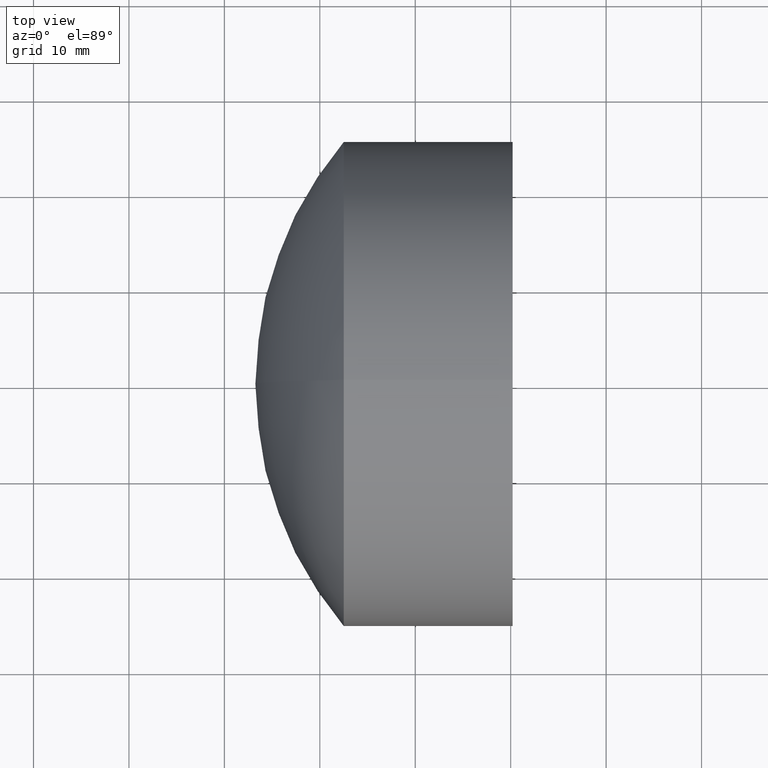
[diagram: clean part render]
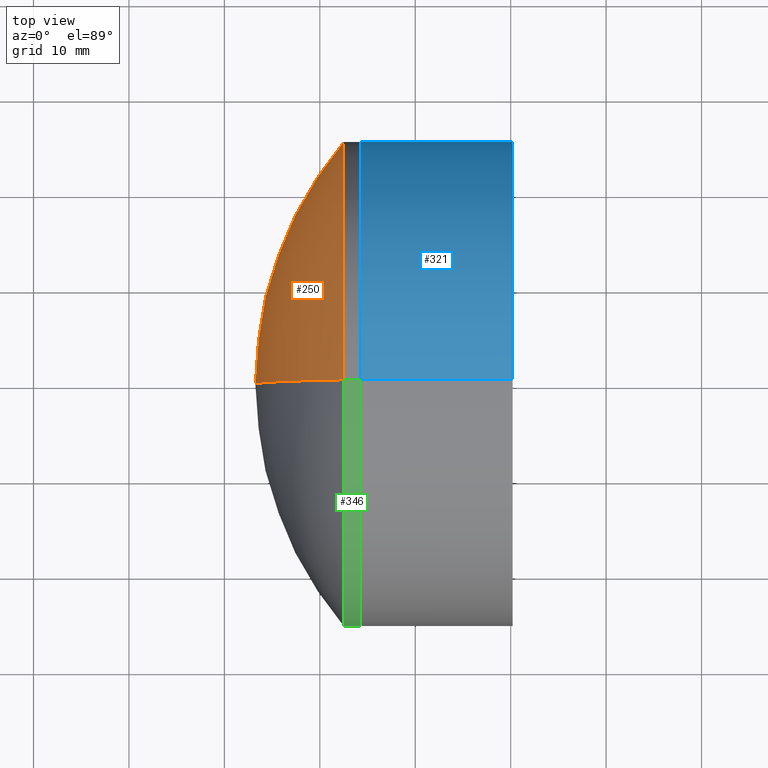
[diagram: same view with three faces highlighted in distinct colors, each labeled with its STEP entity id]
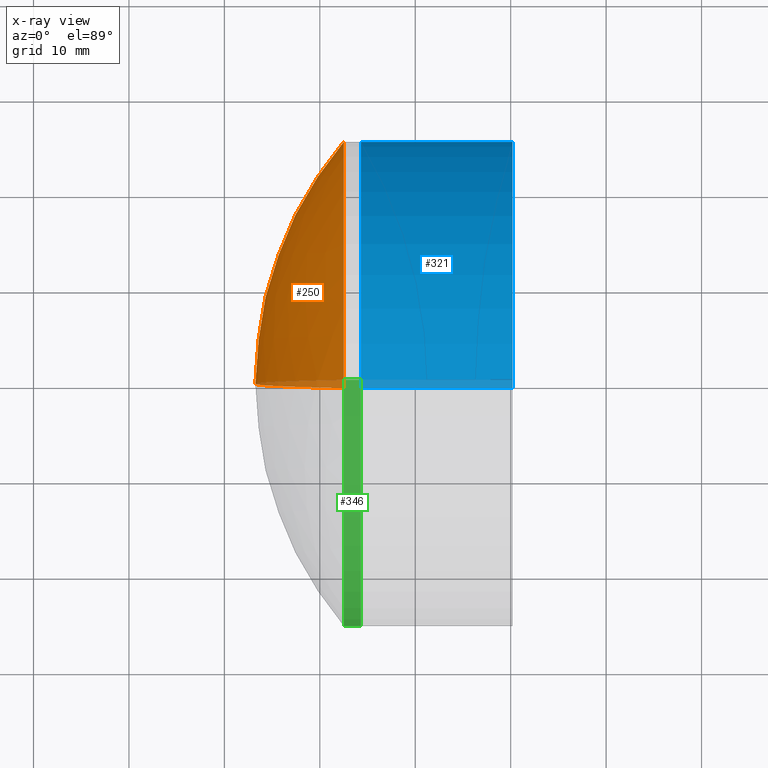
[diagram: x-ray of the same camera — body ghosted, the three highlighted faces saturated]
A machine part, top view with three faces highlighted in distinct colors.
The next image is the same camera in x-ray (body ghosted, the three faces saturated) — at least one of them is partly hidden behind the body in this view.
Their STEP definitions:

[orange] entity #250 — the highlighted spherical surface has radius 39.48 mm.
#2 = DIRECTION ( 'NONE',  ( -0.0000000000000000000, 1.000000000000000000, 1.224646799147353200E-016 ) ) ;
#10 = DIRECTION ( 'NONE',  ( 0.0000000000000000000, 0.0000000000000000000, -1.000000000000000000 ) ) ;
#36 = DIRECTION ( 'NONE',  ( 0.0000000000000000000, 1.000000000000000000, 0.0000000000000000000 ) ) ;
#40 = CARTESIAN_POINT ( 'NONE',  ( 93.24944378259087300, 0.0000000000000000000, -1.964037554729124800E-016 ) ) ;
#48 = DIRECTION ( 'NONE',  ( 0.0000000000000000000, 0.0000000000000000000, 1.000000000000000000 ) ) ;
#49 = ORIENTED_EDGE ( 'NONE', *, *, #213, .F. ) ;
#55 = FACE_OUTER_BOUND ( 'NONE', #80, .T. ) ;
#60 = ORIENTED_EDGE ( 'NONE', *, *, #211, .T. ) ;
#63 = CARTESIAN_POINT ( 'NONE',  ( 132.7294437825908900, 0.0000000000000000000, -2.613856536989788900E-015 ) ) ;
#70 = CARTESIAN_POINT ( 'NONE',  ( 102.5051092158878300, 0.0000000000000000000, 25.40000000000000600 ) ) ;
#80 = EDGE_LOOP ( 'NONE', ( #236, #60, #49 ) ) ;
#95 = CIRCLE ( 'NONE', #284, 39.48000000000001800 ) ;
#98 = AXIS2_PLACEMENT_3D ( 'NONE', #144, #225, #48 ) ;
#113 = AXIS2_PLACEMENT_3D ( 'NONE', #197, #36, #206 ) ;
#117 = CARTESIAN_POINT ( 'NONE',  ( 132.7294437825908900, 0.0000000000000000000, -2.613856536989788900E-015 ) ) ;
#118 = AXIS2_PLACEMENT_3D ( 'NONE', #63, #252, #10 ) ;
#120 = CIRCLE ( 'NONE', #98, 25.40000000000000600 ) ;
#144 = CARTESIAN_POINT ( 'NONE',  ( 102.5051092158878300, 0.0000000000000000000, 0.0000000000000000000 ) ) ;
#162 = SPHERICAL_SURFACE ( 'NONE', #113, 39.48000000000001800 ) ;
#197 = CARTESIAN_POINT ( 'NONE',  ( 132.7294437825908900, 0.0000000000000000000, -2.613856536989788900E-015 ) ) ;
#206 = DIRECTION ( 'NONE',  ( 0.0000000000000000000, 0.0000000000000000000, 1.000000000000000000 ) ) ;
#211 = EDGE_CURVE ( 'NONE', #342, #216, #95, .T. ) ;
#213 = EDGE_CURVE ( 'NONE', #292, #216, #241, .T. ) ;
#216 = VERTEX_POINT ( 'NONE', #40 ) ;
#225 = DIRECTION ( 'NONE',  ( -1.000000000000000000, -0.0000000000000000000, -0.0000000000000000000 ) ) ;
#236 = ORIENTED_EDGE ( 'NONE', *, *, #264, .T. ) ;
#241 = CIRCLE ( 'NONE', #118, 39.48000000000001800 ) ;
#250 = ADVANCED_FACE ( 'NONE', ( #55 ), #162, .T. ) ;
#252 = DIRECTION ( 'NONE',  ( 0.0000000000000000000, -1.000000000000000000, 0.0000000000000000000 ) ) ;
#264 = EDGE_CURVE ( 'NONE', #292, #342, #120, .T. ) ;
#274 = DIRECTION ( 'NONE',  ( 0.0000000000000000000, -1.224646799147353200E-016, 1.000000000000000000 ) ) ;
#284 = AXIS2_PLACEMENT_3D ( 'NONE', #117, #2, #274 ) ;
#287 = CARTESIAN_POINT ( 'NONE',  ( 102.5051092158878300, 3.110602869834277700E-015, -25.40000000000000900 ) ) ;
#292 = VERTEX_POINT ( 'NONE', #70 ) ;
#342 = VERTEX_POINT ( 'NONE', #287 ) ;

[blue] entity #321 — the highlighted cylindrical surface (partial cylindrical patch) has radius 25.4 mm, axis along (-1, -0, -0).
#11 = FACE_OUTER_BOUND ( 'NONE', #34, .T. ) ;
#14 = ORIENTED_EDGE ( 'NONE', *, *, #249, .F. ) ;
#25 = EDGE_CURVE ( 'NONE', #283, #174, #331, .T. ) ;
#28 = DIRECTION ( 'NONE',  ( 0.0000000000000000000, 0.0000000000000000000, 1.000000000000000000 ) ) ;
#34 = EDGE_LOOP ( 'NONE', ( #301, #207, #186, #14 ) ) ;
#42 = CARTESIAN_POINT ( 'NONE',  ( 104.2995427577912200, 0.0000000000000000000, -25.39999999999995600 ) ) ;
#45 = VERTEX_POINT ( 'NONE', #339 ) ;
#54 = DIRECTION ( 'NONE',  ( -1.000000000000000000, -0.0000000000000000000, -0.0000000000000000000 ) ) ;
#56 = DIRECTION ( 'NONE',  ( 0.0000000000000000000, 0.0000000000000000000, 1.000000000000000000 ) ) ;
#79 = EDGE_CURVE ( 'NONE', #45, #243, #198, .T. ) ;
#83 = CARTESIAN_POINT ( 'NONE',  ( 120.2014682904290900, 0.0000000000000000000, 0.0000000000000000000 ) ) ;
#101 = DIRECTION ( 'NONE',  ( -1.000000000000000000, -0.0000000000000000000, -0.0000000000000000000 ) ) ;
#126 = EDGE_CURVE ( 'NONE', #174, #243, #286, .T. ) ;
#137 = DIRECTION ( 'NONE',  ( -1.000000000000000000, -0.0000000000000000000, -0.0000000000000000000 ) ) ;
#145 = CARTESIAN_POINT ( 'NONE',  ( 120.2014682904290900, 0.0000000000000000000, -25.39999999999995600 ) ) ;
#154 = CYLINDRICAL_SURFACE ( 'NONE', #289, 25.39999999999995600 ) ;
#174 = VERTEX_POINT ( 'NONE', #145 ) ;
#186 = ORIENTED_EDGE ( 'NONE', *, *, #79, .F. ) ;
#198 = CIRCLE ( 'NONE', #203, 25.39999999999995600 ) ;
#203 = AXIS2_PLACEMENT_3D ( 'NONE', #245, #54, #28 ) ;
#207 = ORIENTED_EDGE ( 'NONE', *, *, #126, .T. ) ;
#222 = VECTOR ( 'NONE', #137, 1000.000000000000000 ) ;
#227 = CARTESIAN_POINT ( 'NONE',  ( -0.5519199926577972300, 0.0000000000000000000, 25.39999999999995600 ) ) ;
#231 = VECTOR ( 'NONE', #257, 1000.000000000000000 ) ;
#243 = VERTEX_POINT ( 'NONE', #42 ) ;
#245 = CARTESIAN_POINT ( 'NONE',  ( 104.2995427577912200, 0.0000000000000000000, 0.0000000000000000000 ) ) ;
#248 = DIRECTION ( 'NONE',  ( -1.000000000000000000, -0.0000000000000000000, -0.0000000000000000000 ) ) ;
#249 = EDGE_CURVE ( 'NONE', #283, #45, #266, .T. ) ;
#257 = DIRECTION ( 'NONE',  ( -1.000000000000000000, -0.0000000000000000000, -0.0000000000000000000 ) ) ;
#262 = CARTESIAN_POINT ( 'NONE',  ( -0.5519199926577972300, 0.0000000000000000000, 0.0000000000000000000 ) ) ;
#263 = DIRECTION ( 'NONE',  ( 0.0000000000000000000, 0.0000000000000000000, 1.000000000000000000 ) ) ;
#266 = LINE ( 'NONE', #227, #231 ) ;
#267 = CARTESIAN_POINT ( 'NONE',  ( -0.5519199926577972300, 3.110602869834272100E-015, -25.39999999999995600 ) ) ;
#283 = VERTEX_POINT ( 'NONE', #310 ) ;
#286 = LINE ( 'NONE', #267, #222 ) ;
#289 = AXIS2_PLACEMENT_3D ( 'NONE', #262, #101, #263 ) ;
#301 = ORIENTED_EDGE ( 'NONE', *, *, #25, .T. ) ;
#310 = CARTESIAN_POINT ( 'NONE',  ( 120.2014682904290900, -3.110602869834272500E-015, 25.39999999999995600 ) ) ;
#311 = AXIS2_PLACEMENT_3D ( 'NONE', #83, #248, #56 ) ;
#321 = ADVANCED_FACE ( 'NONE', ( #11 ), #154, .T. ) ;
#331 = CIRCLE ( 'NONE', #311, 25.39999999999995600 ) ;
#339 = CARTESIAN_POINT ( 'NONE',  ( 104.2995427577912200, -3.110602869834271700E-015, 25.39999999999997700 ) ) ;

[green] entity #346 — the highlighted cylindrical surface (partial cylindrical patch) has radius 25.4 mm, axis along (-1, -0, -0).
#7 = AXIS2_PLACEMENT_3D ( 'NONE', #138, #291, #108 ) ;
#17 = ORIENTED_EDGE ( 'NONE', *, *, #71, .F. ) ;
#18 = DIRECTION ( 'NONE',  ( 0.0000000000000000000, 0.0000000000000000000, 1.000000000000000000 ) ) ;
#23 = EDGE_CURVE ( 'NONE', #100, #292, #134, .T. ) ;
#29 = CARTESIAN_POINT ( 'NONE',  ( 104.2995427577912200, 3.110602869834277700E-015, -25.40000000000000600 ) ) ;
#31 = DIRECTION ( 'NONE',  ( -1.000000000000000000, -0.0000000000000000000, -0.0000000000000000000 ) ) ;
#53 = LINE ( 'NONE', #246, #265 ) ;
#70 = CARTESIAN_POINT ( 'NONE',  ( 102.5051092158878300, 0.0000000000000000000, 25.40000000000000600 ) ) ;
#71 = EDGE_CURVE ( 'NONE', #82, #342, #53, .T. ) ;
#73 = CARTESIAN_POINT ( 'NONE',  ( -0.8160621761658039000, 0.0000000000000000000, 0.0000000000000000000 ) ) ;
#77 = EDGE_CURVE ( 'NONE', #82, #100, #191, .T. ) ;
#82 = VERTEX_POINT ( 'NONE', #29 ) ;
#92 = ORIENTED_EDGE ( 'NONE', *, *, #23, .T. ) ;
#100 = VERTEX_POINT ( 'NONE', #317 ) ;
#105 = ORIENTED_EDGE ( 'NONE', *, *, #77, .T. ) ;
#108 = DIRECTION ( 'NONE',  ( 0.0000000000000000000, 0.0000000000000000000, 1.000000000000000000 ) ) ;
#134 = LINE ( 'NONE', #221, #271 ) ;
#138 = CARTESIAN_POINT ( 'NONE',  ( 104.2995427577912200, 0.0000000000000000000, 0.0000000000000000000 ) ) ;
#161 = DIRECTION ( 'NONE',  ( 0.0000000000000000000, 0.0000000000000000000, 1.000000000000000000 ) ) ;
#188 = CARTESIAN_POINT ( 'NONE',  ( 102.5051092158878300, 0.0000000000000000000, 0.0000000000000000000 ) ) ;
#191 = CIRCLE ( 'NONE', #7, 25.40000000000000600 ) ;
#194 = EDGE_LOOP ( 'NONE', ( #17, #105, #92, #303 ) ) ;
#209 = AXIS2_PLACEMENT_3D ( 'NONE', #188, #333, #161 ) ;
#221 = CARTESIAN_POINT ( 'NONE',  ( -0.8160621761658039000, 0.0000000000000000000, 25.40000000000000600 ) ) ;
#240 = DIRECTION ( 'NONE',  ( -1.000000000000000000, -0.0000000000000000000, -0.0000000000000000000 ) ) ;
#246 = CARTESIAN_POINT ( 'NONE',  ( -0.8160621761658039000, 3.110602869834277700E-015, -25.40000000000000600 ) ) ;
#265 = VECTOR ( 'NONE', #31, 1000.000000000000000 ) ;
#271 = VECTOR ( 'NONE', #320, 1000.000000000000000 ) ;
#281 = EDGE_CURVE ( 'NONE', #342, #292, #298, .T. ) ;
#287 = CARTESIAN_POINT ( 'NONE',  ( 102.5051092158878300, 3.110602869834277700E-015, -25.40000000000000900 ) ) ;
#288 = FACE_OUTER_BOUND ( 'NONE', #194, .T. ) ;
#291 = DIRECTION ( 'NONE',  ( -1.000000000000000000, -0.0000000000000000000, -0.0000000000000000000 ) ) ;
#292 = VERTEX_POINT ( 'NONE', #70 ) ;
#298 = CIRCLE ( 'NONE', #209, 25.40000000000000600 ) ;
#303 = ORIENTED_EDGE ( 'NONE', *, *, #281, .F. ) ;
#308 = AXIS2_PLACEMENT_3D ( 'NONE', #73, #240, #18 ) ;
#317 = CARTESIAN_POINT ( 'NONE',  ( 104.2995427577912200, 0.0000000000000000000, 25.40000000000000600 ) ) ;
#320 = DIRECTION ( 'NONE',  ( -1.000000000000000000, -0.0000000000000000000, -0.0000000000000000000 ) ) ;
#333 = DIRECTION ( 'NONE',  ( -1.000000000000000000, -0.0000000000000000000, -0.0000000000000000000 ) ) ;
#342 = VERTEX_POINT ( 'NONE', #287 ) ;
#345 = CYLINDRICAL_SURFACE ( 'NONE', #308, 25.40000000000000600 ) ;
#346 = ADVANCED_FACE ( 'NONE', ( #288 ), #345, .T. ) ;